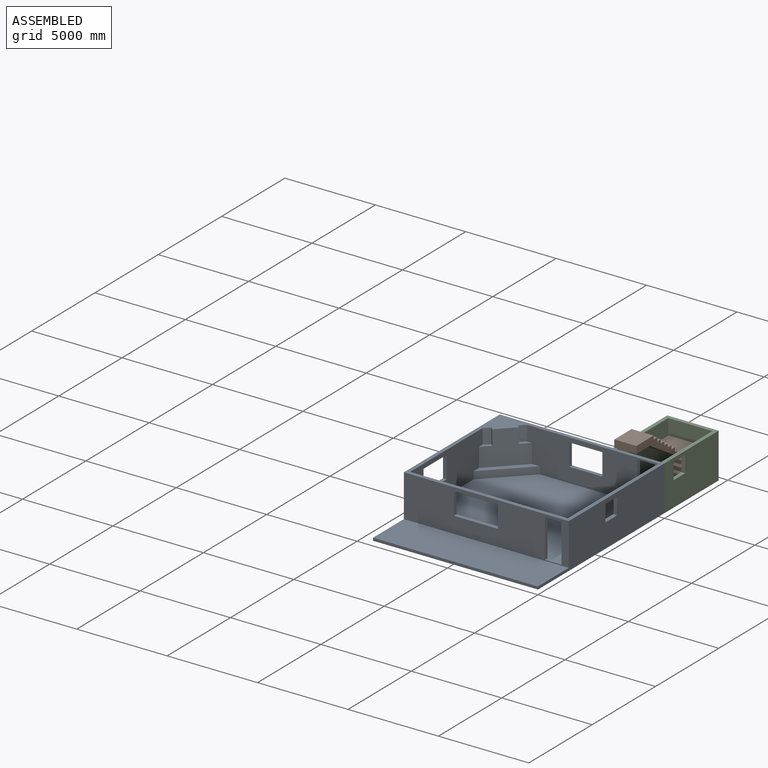
[diagram: assembled view]
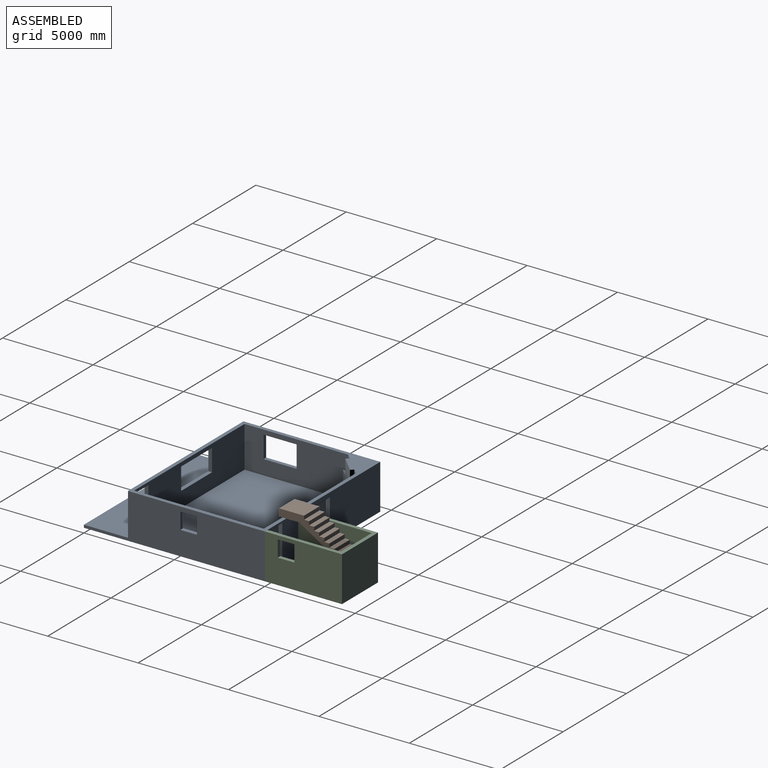
[diagram: assembled view, second angle]
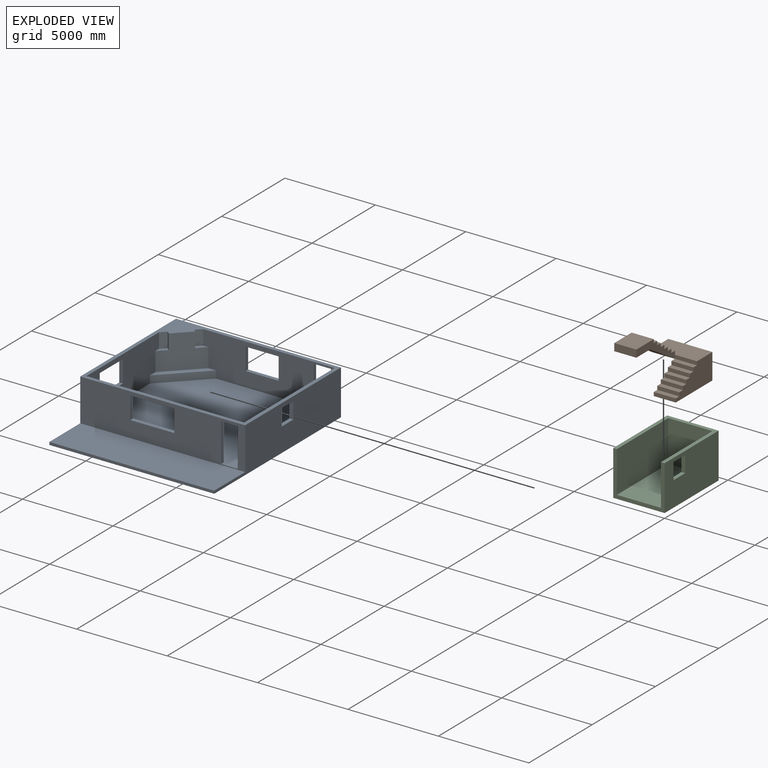
[diagram: exploded view]
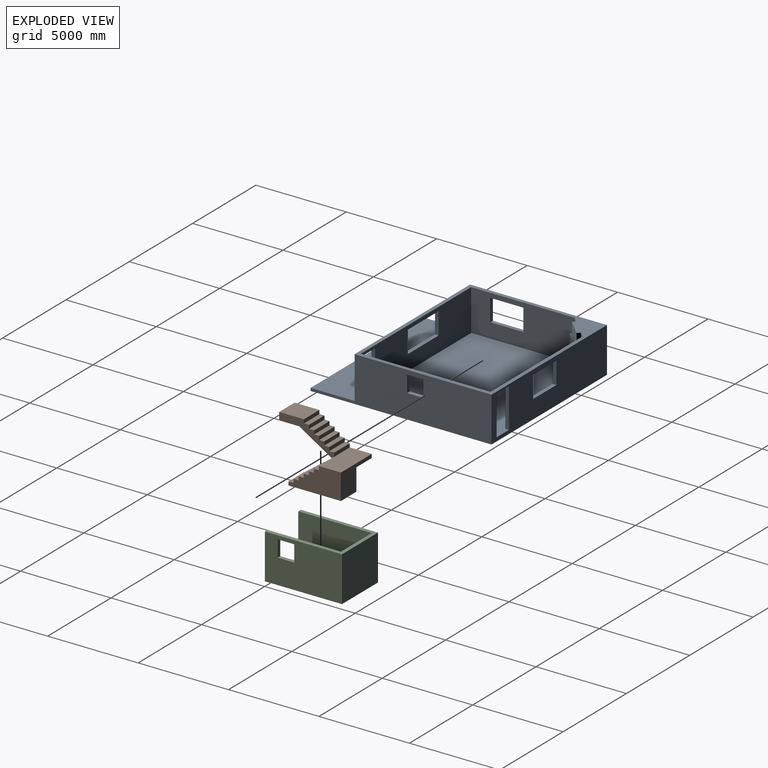
[diagram: exploded view, second angle]
ASSEMBLY  parts=3 mates=6
PART A: 44 faces, bbox 9118.6x10007.6x2489.2 mm
  f0: plane 7275.36x2286mm, normal (0,-1,0), area 11698534mm2, adj f1,f5,f12,f13,f25,f26,f27,f28
  f1: plane 1879.6x1724.21mm, normal (0.71,-0.71,0), area 3576767mm2, adj f0,f2,f12,f37,f39,f40,f41,f43
  f2: plane 5725.96x2286mm, normal (1,0,0), area 10264988.5mm2, adj f1,f6,f12,f13,f32,f33,f34,f35
  f3: plane 9118.6x2489.2mm, normal (0,1,0), area 18359963.3mm2, adj f4,f7,f9,f12,f13,f25,f26,f27
  f4: plane 10007.6x2489.2mm, normal (1,0,0), area 18376737.4mm2, adj f3,f8,f9,f10,f11,f12,f21,f22
  f5: plane 7162.8x2286mm, normal (-1,0,0), area 15538033.4mm2, adj f0,f6,f12,f13,f21,f22,f23,f24
  f6: plane 8712.2x2286mm, normal (0,1,0), area 14998034.5mm2, adj f2,f5,f12,f13,f14,f15,f16,f17
  f7: plane 10007.6x2489.2mm, normal (-1,0,0), area 16983191.8mm2, adj f3,f8,f9,f10,f11,f12,f32,f33
  f8: plane 9118.6x152.4mm, normal (0,-1,0), area 1389674.6mm2, adj f4,f7,f9,f11
  f9: plane 10007.6x9118.6mm, normal (0,0,-1), area 91255301.4mm2, adj f3,f4,f7,f8
  f10: plane 9118.6x2336.8mm, normal (0,-1,0), area 16390289.8mm2, adj f4,f7,f11,f12,f13,f14,f15,f16
  f11: plane 9118.6x2438.4mm, normal (0,0,1), area 22234794.2mm2, adj f4,f7,f8,f10
  f12: plane 9118.6x7569.2mm, normal (0,0,1), area 7896758.4mm2, adj f0,f1,f2,f3,f4,f5,f6,f7
  f13: plane 8712.2x7569.2mm, normal (0,0,1), area 60463104.9mm2, adj f0,f2,f3,f5,f6,f10,f18,f20
  f14: plane 1219.2x203.2mm, normal (1,0,0), area 247741.4mm2, adj f6,f10,f15,f17
  f15: plane 2438.4x203.2mm, normal (0,0,1), area 495482.9mm2, adj f6,f10,f14,f16
  f16: plane 1219.2x203.2mm, normal (-1,0,0), area 247741.4mm2, adj f6,f10,f15,f17
  f17: plane 2438.4x203.2mm, normal (0,0,-1), area 495482.9mm2, adj f6,f10,f14,f16
  f18: plane 2127.25x203.2mm, normal (-1,0,0), area 432257.2mm2, adj f6,f10,f13,f19
  f19: plane 914.4x203.2mm, normal (0,0,-1), area 185806.1mm2, adj f6,f10,f18,f20
  f20: plane 2127.25x203.2mm, normal (1,0,0), area 432257.2mm2, adj f6,f10,f13,f19
  f21: plane 914.4x203.2mm, normal (0,1,0), area 185806.1mm2, adj f4,f5,f22,f23
  f22: plane 914.4x203.2mm, normal (0,0,-1), area 185806.1mm2, adj f4,f5,f21,f24
  f23: plane 914.4x203.2mm, normal (0,0,1), area 185806.1mm2, adj f4,f5,f21,f24
  f24: plane 914.4x203.2mm, normal (0,-1,0), area 185806.1mm2, adj f4,f5,f22,f23
  f25: plane 1828.8x203.2mm, normal (0,0,-1), area 371612.2mm2, adj f0,f3,f26,f28
  f26: plane 1219.2x203.2mm, normal (-1,0,0), area 247741.4mm2, adj f0,f3,f25,f27
  f27: plane 1828.8x203.2mm, normal (0,0,1), area 371612.2mm2, adj f0,f3,f26,f28
  f28: plane 1219.2x203.2mm, normal (1,0,0), area 247741.4mm2, adj f0,f3,f25,f27
  f29: plane 965.2x203.2mm, normal (0,0,-1), area 196128.6mm2, adj f0,f3,f30,f31
  f30: plane 2184.4x203.2mm, normal (-1,0,0), area 443870.1mm2, adj f0,f3,f13,f29
  f31: plane 2184.4x203.2mm, normal (1,0,0), area 443870.1mm2, adj f0,f3,f13,f29
  f32: plane 1828.8x203.2mm, normal (0,0,1), area 371612.2mm2, adj f2,f7,f33,f34
  f33: plane 1219.2x203.2mm, normal (0,-1,0), area 247741.4mm2, adj f2,f7,f32,f35
  f34: plane 1219.2x203.2mm, normal (0,1,0), area 247741.4mm2, adj f2,f7,f32,f35
  f35: plane 1828.8x203.2mm, normal (0,0,-1), area 371612.2mm2, adj f2,f7,f33,f34
  f36: plane 2155.26x2155.26mm, normal (0.71,-0.71,0), area 1238707.2mm2, adj f0,f2,f13,f37
  f37: plane 2155.26x2155.26mm, normal (0,0,1), area 836127.4mm2, adj f0,f1,f2,f36
  f38: plane 825.5x287.37mm, normal (0.71,-0.71,0), area 335483.2mm2, adj f0,f12,f39,f40
  f39: plane 825.5x143.68mm, normal (0.71,0.71,0), area 167741.6mm2, adj f1,f12,f38,f40
  f40: plane 574.74x431.05mm, normal (0,0,1), area 103225.6mm2, adj f0,f1,f38,f39
  f41: plane 825.5x143.68mm, normal (-0.71,-0.71,0), area 167741.6mm2, adj f1,f12,f42,f43
  f42: plane 825.5x287.37mm, normal (0.71,-0.71,0), area 335483.2mm2, adj f2,f12,f41,f43
  f43: plane 574.74x431.05mm, normal (0,0,1), area 103225.6mm2, adj f1,f2,f41,f42
PART B: 38 faces, bbox 2438.4x4267.2x2844.8 mm
  f0: plane 1219.2x203.2mm, normal (0,-1,0), area 247741.4mm2, adj f3,f4,f17,f20
  f1: plane 2895.6x1219.2mm, normal (0,0,-1), area 3530315.5mm2, adj f2,f15,f16,f17
  f2: plane 2438.4x1422.4mm, normal (0,1,0), area 1981931.5mm2, adj f1,f3,f16,f17,f18,f19
  f3: plane 2438.4x1219.2mm, normal (0,0,1), area 2972897.3mm2, adj f0,f2,f17,f19,f35
  f4: plane 1219.2x279.4mm, normal (0,0,1), area 340644.5mm2, adj f0,f5,f16,f17
  f5: plane 1219.2x203.2mm, normal (0,-1,0), area 247741.4mm2, adj f4,f6,f16,f17
  f6: plane 1219.2x279.4mm, normal (0,0,1), area 340644.5mm2, adj f5,f7,f16,f17
  f7: plane 1219.2x203.2mm, normal (0,-1,0), area 247741.4mm2, adj f6,f8,f16,f17
  f8: plane 1219.2x279.4mm, normal (0,0,1), area 340644.5mm2, adj f7,f9,f16,f17
  f9: plane 1219.2x203.2mm, normal (0,-1,0), area 247741.4mm2, adj f8,f10,f16,f17
  f10: plane 1219.2x279.4mm, normal (0,0,1), area 340644.5mm2, adj f9,f11,f16,f17
  f11: plane 1219.2x203.2mm, normal (0,-1,0), area 247741.4mm2, adj f10,f12,f16,f17
  f12: plane 1219.2x279.4mm, normal (0,0,1), area 340644.5mm2, adj f11,f13,f16,f17
  f13: plane 1219.2x203.2mm, normal (0,-1,0), area 247741.4mm2, adj f12,f14,f16,f17
  f14: plane 1219.2x279.4mm, normal (0,0,1), area 340644.5mm2, adj f13,f15,f16,f17
  f15: plane 1219.2x203.2mm, normal (0,-1,0), area 247741.4mm2, adj f1,f14,f16,f17
  f16: plane 2895.6x1219.2mm, normal (-1,0,0), area 2678704.3mm2, adj f1,f2,f4,f5,f6,f7,f8,f9
  f17: plane 2895.6x1422.4mm, normal (1,0,0), area 2926445.8mm2, adj f0,f1,f2,f3,f4,f5,f6,f7
  f18: plane 1219.2x1219.2mm, normal (0,0,-1), area 1486448.6mm2, adj f2,f16,f19,f21
  f19: plane 4267.2x1625.6mm, normal (-1,0,0), area 1486448.6mm2, adj f2,f3,f18,f21,f22,f23,f24,f25
  f20: plane 3048x1625.6mm, normal (1,0,0), area 1238707.2mm2, adj f0,f21,f22,f23,f24,f25,f26,f27
  f21: plane 1955.8x1219.2mm, normal (0,-0.53,-0.85), area 2809879.7mm2, adj f18,f19,f20,f36
  f22: plane 1371.6x1219.2mm, normal (0,0,1), area 1672254.7mm2, adj f19,f20,f23,f37
  f23: plane 1219.2x203.2mm, normal (0,1,0), area 247741.4mm2, adj f19,f20,f22,f24
  f24: plane 1219.2x279.4mm, normal (0,0,1), area 340644.5mm2, adj f19,f20,f23,f25
  f25: plane 1219.2x203.2mm, normal (0,1,0), area 247741.4mm2, adj f19,f20,f24,f26
  f26: plane 1219.2x279.4mm, normal (0,0,1), area 340644.5mm2, adj f19,f20,f25,f27
  f27: plane 1219.2x203.2mm, normal (0,1,0), area 247741.4mm2, adj f19,f20,f26,f28
  f28: plane 1219.2x279.4mm, normal (0,0,1), area 340644.5mm2, adj f19,f20,f27,f29
  f29: plane 1219.2x203.2mm, normal (0,1,0), area 247741.4mm2, adj f19,f20,f28,f30
  f30: plane 1219.2x279.4mm, normal (0,0,1), area 340644.5mm2, adj f19,f20,f29,f31
  f31: plane 1219.2x203.2mm, normal (0,1,0), area 247741.4mm2, adj f19,f20,f30,f32
  f32: plane 1219.2x279.4mm, normal (0,0,1), area 340644.5mm2, adj f19,f20,f31,f33
  f33: plane 1219.2x203.2mm, normal (0,1,0), area 247741.4mm2, adj f19,f20,f32,f34
  f34: plane 1219.2x279.4mm, normal (0,0,1), area 340644.5mm2, adj f19,f20,f33,f35
  f35: plane 1219.2x203.2mm, normal (0,1,0), area 247741.4mm2, adj f3,f19,f20,f34
  f36: plane 1219.2x1092.2mm, normal (0,0,-1), area 1331610.2mm2, adj f19,f20,f21,f37
  f37: plane 1219.2x406.4mm, normal (0,-1,0), area 495482.9mm2, adj f19,f20,f22,f36
PART C: 14 faces, bbox 4267.2x2844.8x2489.2 mm
  f0: plane 4267.2x2489.2mm, normal (0,1,0), area 10621914.2mm2, adj f1,f3,f5,f9
  f1: plane 2844.8x2489.2mm, normal (-1,0,0), area 1507093.8mm2, adj f0,f2,f4,f5,f7,f8,f9
  f2: plane 4267.2x2489.2mm, normal (0,-1,0), area 9785786.9mm2, adj f1,f3,f5,f9,f10,f11,f12,f13
  f3: plane 2844.8x2489.2mm, normal (1,0,0), area 7081276.2mm2, adj f0,f2,f5,f9
  f4: plane 4064x2438.4mm, normal (0,0,1), area 9909657.6mm2, adj f1,f6,f7,f8
  f5: plane 4267.2x2844.8mm, normal (0,0,-1), area 12139330.6mm2, adj f0,f1,f2,f3
  f6: plane 2438.4x2286mm, normal (-1,0,0), area 5574182.4mm2, adj f4,f7,f8,f9
  f7: plane 4064x2286mm, normal (0,1,0), area 8454176.6mm2, adj f1,f4,f6,f9,f10,f11,f12,f13
  f8: plane 4064x2286mm, normal (0,-1,0), area 9290304mm2, adj f1,f4,f6,f9
  f9: plane 4267.2x2844.8mm, normal (0,0,1), area 2229673mm2, adj f0,f1,f2,f3,f6,f7,f8
  f10: plane 914.4x203.2mm, normal (0,0,1), area 185806.1mm2, adj f2,f7,f11,f12
  f11: plane 914.4x203.2mm, normal (1,0,0), area 185806.1mm2, adj f2,f7,f10,f13
  f12: plane 914.4x203.2mm, normal (-1,0,0), area 185806.1mm2, adj f2,f7,f10,f13
  f13: plane 914.4x203.2mm, normal (0,0,-1), area 185806.1mm2, adj f2,f7,f11,f12
PLACE A at identity fixed
PLACE B rot(axis=(-1,0,0),0deg) t=(-203.2,11176,0)mm
PLACE C rot(axis=(0,0,1),90deg) t=(0,10007.6,-203.2)mm
MATE planar C.f4 <-> B.f1  axis (0,0,1) through (-1422.4,12039.6,0)mm
MATE planar B.f17 <-> C.f7  axis (1,0,0) through (-203.2,12967.01,600.82)mm
MATE planar C.f2 <-> A.f4  axis (1,0,0) through (0,12223.67,991.48)mm
MATE planar C.f1 <-> A.f3  axis (0,-1,0) through (-1422.4,10007.6,665.62)mm
MATE planar A.f9 <-> C.f5  axis (0,0,-1) through (-4559.3,5003.8,-203.2)mm
MATE planar B.f2 <-> C.f6  axis (0,1,0) through (-203.2,14071.6,0)mm
